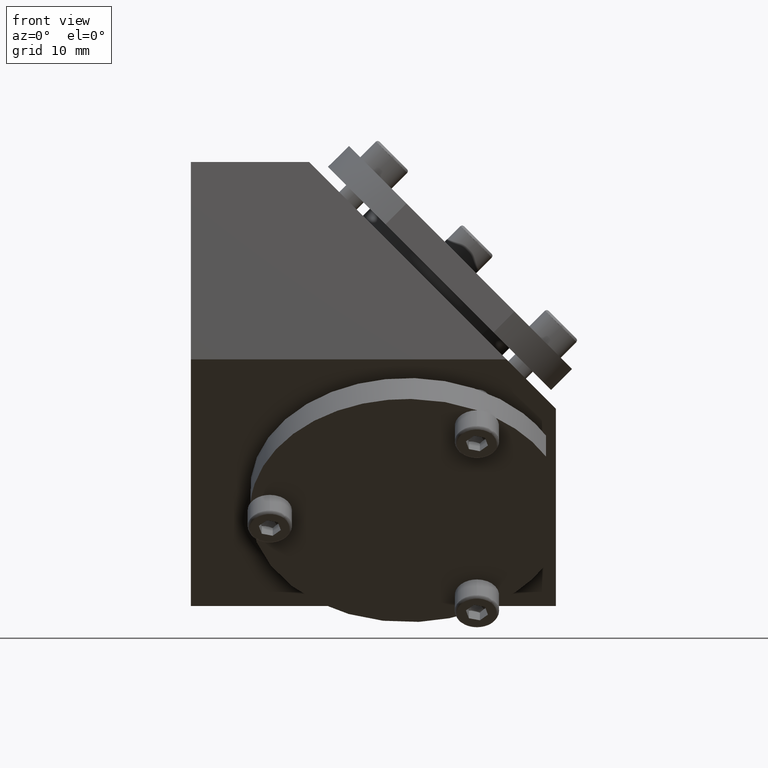
[diagram: clean part render]
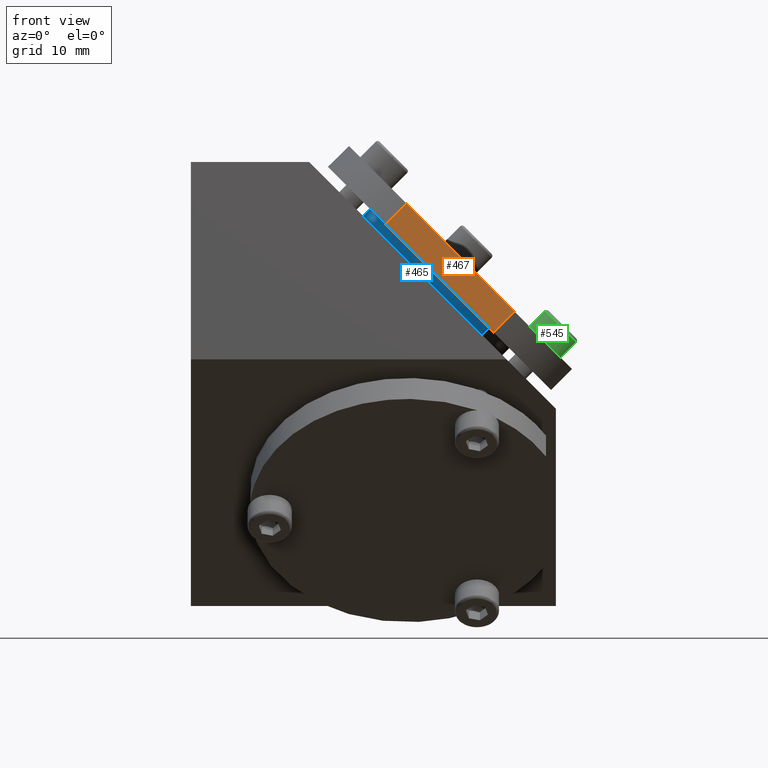
[diagram: same view with three faces highlighted in distinct colors, each labeled with its STEP entity id]
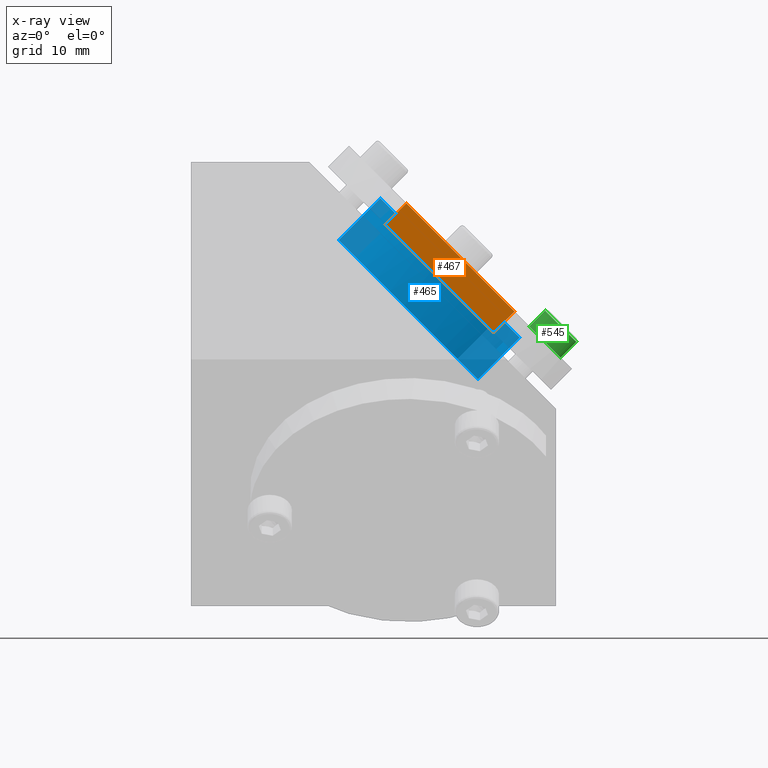
[diagram: x-ray of the same camera — body ghosted, the three highlighted faces saturated]
A machine part, front view with three faces highlighted in distinct colors.
The next image is the same camera in x-ray (body ghosted, the three faces saturated) — at least one of them is partly hidden behind the body in this view.
Their STEP definitions:

[orange] entity #467 — the highlighted face is a freeform B-spline surface patch.
#81=B_SPLINE_SURFACE_WITH_KNOTS('',1,1,((#14206,#14207),(#14208,#14209)),
 .UNSPECIFIED.,.F.,.F.,.F.,(2,2),(2,2),(-10.9537592390235,32.8612777170714),
(-55.1669318215805,-18.9724675358662),.UNSPECIFIED.);
#98=B_SPLINE_SURFACE_WITH_KNOTS('',1,1,((#14710,#14711),(#14712,#14713)),
 .UNSPECIFIED.,.F.,.F.,.F.,(2,2),(2,2),(-7.96546289619784,7.96546289619782),
(-23.8963886885934,-7.9654628961978),.UNSPECIFIED.);
#99=B_SPLINE_SURFACE_WITH_KNOTS('',1,1,((#14714,#14715),(#14716,#14717)),
 .UNSPECIFIED.,.F.,.F.,.F.,(2,2),(2,2),(-33.7171345524588,11.239044850819),
(-55.9726347529724,-19.6716765596116),.UNSPECIFIED.);
#467=ADVANCED_FACE('',(#717),#98,.T.);
#717=FACE_OUTER_BOUND('',#975,.T.);
#975=EDGE_LOOP('',(#1696,#1697,#1698,#1699));
#1696=ORIENTED_EDGE('',*,*,#7402,.T.);
#1697=ORIENTED_EDGE('',*,*,#7227,.F.);
#1698=ORIENTED_EDGE('',*,*,#7403,.T.);
#1699=ORIENTED_EDGE('',*,*,#7404,.T.);
#2801=PCURVE('',#81,#4131);
#3026=PCURVE('',#98,#4356);
#3027=PCURVE('',#98,#4357);
#3028=PCURVE('',#98,#4358);
#3029=PCURVE('',#98,#4359);
#3031=PCURVE('',#99,#4361);
#3100=PCURVE('',#9187,#4430);
#3102=PCURVE('',#9187,#4432);
#4131=DEFINITIONAL_REPRESENTATION('',(#5448),#23564);
#4356=DEFINITIONAL_REPRESENTATION('',(#5597),#23564);
#4357=DEFINITIONAL_REPRESENTATION('',(#5598),#23564);
#4358=DEFINITIONAL_REPRESENTATION('',(#5599),#23564);
#4359=DEFINITIONAL_REPRESENTATION('',(#5601),#23564);
#4361=DEFINITIONAL_REPRESENTATION('',(#5602),#23564);
#4430=DEFINITIONAL_REPRESENTATION('',(#5651),#23564);
#4432=DEFINITIONAL_REPRESENTATION('',(#5653),#23564);
#5447=B_SPLINE_CURVE_WITH_KNOTS('',1,(#16347,#16348),.UNSPECIFIED.,.F.,
 .F.,(2,2),(0.,15.4919333848297),.UNSPECIFIED.);
#5448=B_SPLINE_CURVE_WITH_KNOTS('',1,(#16349,#16350),.UNSPECIFIED.,.F.,
 .F.,(2,2),(0.,15.4919333848297),.UNSPECIFIED.);
#5597=B_SPLINE_CURVE_WITH_KNOTS('',1,(#17685,#17686),.UNSPECIFIED.,.F.,
 .F.,(2,2),(-3.00000000000008,0.),.UNSPECIFIED.);
#5598=B_SPLINE_CURVE_WITH_KNOTS('',1,(#17687,#17688),.UNSPECIFIED.,.F.,
 .F.,(2,2),(0.,15.4919333848297),.UNSPECIFIED.);
#5599=B_SPLINE_CURVE_WITH_KNOTS('',1,(#17691,#17692),.UNSPECIFIED.,.F.,
 .F.,(2,2),(-2.99999999999997,0.),.UNSPECIFIED.);
#5600=B_SPLINE_CURVE_WITH_KNOTS('',1,(#17693,#17694),.UNSPECIFIED.,.F.,
 .F.,(2,2),(-15.4919333848297,0.),.UNSPECIFIED.);
#5601=B_SPLINE_CURVE_WITH_KNOTS('',1,(#17695,#17696),.UNSPECIFIED.,.F.,
 .F.,(2,2),(-15.4919333848297,0.),.UNSPECIFIED.);
#5602=B_SPLINE_CURVE_WITH_KNOTS('',1,(#17715,#17716),.UNSPECIFIED.,.F.,
 .F.,(2,2),(-15.4919333848297,0.),.UNSPECIFIED.);
#5651=B_SPLINE_CURVE_WITH_KNOTS('',1,(#17998,#17999),.UNSPECIFIED.,.F.,
 .F.,(2,2),(-3.00000000000008,0.),.UNSPECIFIED.);
#5653=B_SPLINE_CURVE_WITH_KNOTS('',1,(#18002,#18003),.UNSPECIFIED.,.F.,
 .F.,(2,2),(-2.99999999999997,0.),.UNSPECIFIED.);
#6517=SURFACE_CURVE('',#5447,(#2801,#3027),.PCURVE_S1.);
#6692=SURFACE_CURVE('',#8201,(#3026,#3100),.PCURVE_S1.);
#6693=SURFACE_CURVE('',#8202,(#3028,#3102),.PCURVE_S1.);
#6694=SURFACE_CURVE('',#5600,(#3029,#3031),.PCURVE_S1.);
#7227=EDGE_CURVE('',#8707,#8708,#6517,.T.);
#7402=EDGE_CURVE('',#8848,#8708,#6692,.T.);
#7403=EDGE_CURVE('',#8707,#8849,#6693,.T.);
#7404=EDGE_CURVE('',#8849,#8848,#6694,.T.);
#8201=(
BOUNDED_CURVE()
B_SPLINE_CURVE(1,(#17683,#17684),.UNSPECIFIED.,.F.,.F.)
B_SPLINE_CURVE_WITH_KNOTS((2,2),(-3.00000000000008,0.),.UNSPECIFIED.)
CURVE()
GEOMETRIC_REPRESENTATION_ITEM()
RATIONAL_B_SPLINE_CURVE((1.,1.))
REPRESENTATION_ITEM('')
);
#8202=(
BOUNDED_CURVE()
B_SPLINE_CURVE(1,(#17689,#17690),.UNSPECIFIED.,.F.,.F.)
B_SPLINE_CURVE_WITH_KNOTS((2,2),(-2.99999999999997,0.),.UNSPECIFIED.)
CURVE()
GEOMETRIC_REPRESENTATION_ITEM()
RATIONAL_B_SPLINE_CURVE((1.,1.))
REPRESENTATION_ITEM('')
);
#8707=VERTEX_POINT('',#15873);
#8708=VERTEX_POINT('',#15874);
#8848=VERTEX_POINT('',#16014);
#8849=VERTEX_POINT('',#16015);
#9187=(
BOUNDED_SURFACE()
B_SPLINE_SURFACE(2,1,((#14906,#14907),(#14908,#14909),(#14910,#14911),(#14912,
#14913),(#14914,#14915),(#14916,#14917),(#14918,#14919),(#14920,#14921),
(#14922,#14923)),.UNSPECIFIED.,.T.,.F.,.F.)
B_SPLINE_SURFACE_WITH_KNOTS((3,2,2,2,3),(2,2),(0.,32.0000000000001,63.9999999999999,
96.,128.),(0.,47.9856081796871),.UNSPECIFIED.)
GEOMETRIC_REPRESENTATION_ITEM()
RATIONAL_B_SPLINE_SURFACE(((1.,1.),(0.707106781186548,0.707106781186548),
(1.,1.),(0.707106781186548,0.707106781186548),(1.,1.),(0.707106781186548,
0.707106781186548),(1.,1.),(0.707106781186548,0.707106781186548),(1.,1.)))
REPRESENTATION_ITEM('')
SURFACE()
);
#14206=CARTESIAN_POINT('',(-9.2823777291351,88.82187877684,22.1162052103521));
#14207=CARTESIAN_POINT('',(-9.28237772913511,88.82187877684,-14.0782590753622));
#14208=CARTESIAN_POINT('',(21.6995320204589,57.8399690272461,22.1162052103521));
#14209=CARTESIAN_POINT('',(21.6995320204588,57.8399690272461,-14.0782590753622));
#14710=CARTESIAN_POINT('',(-2.81754592231576,64.3048008340655,18.9999998532092));
#14711=CARTESIAN_POINT('',(-2.81754592231576,80.2357266264611,18.9999998532092));
#14712=CARTESIAN_POINT('',(13.1133798700799,64.3048008340655,18.9999998532092));
#14713=CARTESIAN_POINT('',(13.1133798700799,80.2357266264611,18.9999998532092));
#14714=CARTESIAN_POINT('',(19.9816664582506,55.3151939023351,22.1250797026559));
#14715=CARTESIAN_POINT('',(19.9816664582506,55.3151939023351,-14.1758784907049));
#14716=CARTESIAN_POINT('',(-11.8071528540461,87.1040132146318,22.1250797026559));
#14717=CARTESIAN_POINT('',(-11.8071528540461,87.1040132146317,-14.1758784907049));
#14906=CARTESIAN_POINT('',(21.9452852865942,89.0676320429755,20.9999998532092));
#14907=CARTESIAN_POINT('',(-11.985663656623,55.1366830997579,20.9999998532094));
#14908=CARTESIAN_POINT('',(10.6315767876094,100.38134054196,20.9999998532092));
#14909=CARTESIAN_POINT('',(-23.2993721556077,66.4503915987425,20.9999998532091));
#14910=CARTESIAN_POINT('',(10.6315767876093,100.38134054196,4.99999985320916));
#14911=CARTESIAN_POINT('',(-23.2993721556076,66.4503915987422,4.99999985320927));
#14912=CARTESIAN_POINT('',(10.6315767876092,100.38134054196,-11.0000001467908));
#14913=CARTESIAN_POINT('',(-23.2993721556076,66.450391598742,-11.0000001467906));
#14914=CARTESIAN_POINT('',(21.9452852865941,89.0676320429753,-11.0000001467908));
#14915=CARTESIAN_POINT('',(-11.9856636566228,55.1366830997574,-11.0000001467904));
#14916=CARTESIAN_POINT('',(33.258993785579,77.7539235439906,-11.0000001467908));
#14917=CARTESIAN_POINT('',(-0.671955157637981,43.8229746007729,-11.0000001467901));
#14918=CARTESIAN_POINT('',(33.2589937855791,77.7539235439907,4.99999985320918));
#14919=CARTESIAN_POINT('',(-0.671955157638074,43.8229746007731,4.99999985320975));
#14920=CARTESIAN_POINT('',(33.2589937855791,77.7539235439908,20.9999998532092));
#14921=CARTESIAN_POINT('',(-0.671955157638166,43.8229746007734,20.9999998532096));
#14922=CARTESIAN_POINT('',(21.9452852865942,89.0676320429755,20.9999998532092));
#14923=CARTESIAN_POINT('',(-11.985663656623,55.1366830997579,20.9999998532094));
#15873=CARTESIAN_POINT('',(0.731351570610186,78.8081494770948,18.9999998532091));
#15874=CARTESIAN_POINT('',(11.6858027207136,67.8536983269914,18.9999998532092));
#16014=CARTESIAN_POINT('',(9.56448237715396,65.7323779834318,18.9999998532093));
#16015=CARTESIAN_POINT('',(-1.38996877294947,76.6868291335352,18.9999998532091));
#16347=CARTESIAN_POINT('',(0.731351570610186,78.8081494770948,18.9999998532091));
#16348=CARTESIAN_POINT('',(11.6858027207136,67.8536983269914,18.9999998532092));
#16349=CARTESIAN_POINT('',(3.20779254660906,-52.0507264644375));
#16350=CARTESIAN_POINT('',(18.6997259314388,-52.0507264644376));
#17683=CARTESIAN_POINT('',(9.56448237715396,65.7323779834318,18.9999998532093));
#17684=CARTESIAN_POINT('',(11.6858027207136,67.8536983269914,18.9999998532092));
#17685=CARTESIAN_POINT('',(4.41656540327185,-22.4688115392271));
#17686=CARTESIAN_POINT('',(6.53788574683152,-20.3474911956674));
#17687=CARTESIAN_POINT('',(-4.41656540327189,-9.39304004556409));
#17688=CARTESIAN_POINT('',(6.53788574683152,-20.3474911956674));
#17689=CARTESIAN_POINT('',(0.731351570610186,78.8081494770948,18.9999998532091));
#17690=CARTESIAN_POINT('',(-1.38996877294947,76.6868291335352,18.9999998532091));
#17691=CARTESIAN_POINT('',(-4.41656540327189,-9.39304004556409));
#17692=CARTESIAN_POINT('',(-6.53788574683153,-11.5143603891237));
#17693=CARTESIAN_POINT('',(-1.38996877294947,76.6868291335352,18.9999998532091));
#17694=CARTESIAN_POINT('',(9.56448237715396,65.7323779834318,18.9999998532093));
#17695=CARTESIAN_POINT('',(-6.53788574683153,-11.5143603891237));
#17696=CARTESIAN_POINT('',(4.41656540327185,-22.4688115392271));
#17715=CARTESIAN_POINT('',(-3.49307815840494,-52.8475549035256));
#17716=CARTESIAN_POINT('',(-18.9850115432347,-52.8475549035257));
#17998=CARTESIAN_POINT('',(117.444190467351,25.2550660800137));
#17999=CARTESIAN_POINT('',(117.444190467351,22.2550660800136));
#18002=CARTESIAN_POINT('',(10.5558095326497,22.2550660800136));
#18003=CARTESIAN_POINT('',(10.5558095326497,25.2550660800135));
#23564=(
GEOMETRIC_REPRESENTATION_CONTEXT(2)
PARAMETRIC_REPRESENTATION_CONTEXT()
REPRESENTATION_CONTEXT('pspace','')
);

[blue] entity #465 — the highlighted face is a freeform B-spline surface patch.
#101=B_SPLINE_SURFACE_WITH_KNOTS('',1,1,((#14902,#14903),(#14904,#14905)),
 .UNSPECIFIED.,.F.,.F.,.F.,(2,2),(2,2),(-24.4151173873542,9.28525206097569),
(-53.4898357101582,-17.018314768321),.UNSPECIFIED.);
#111=B_SPLINE_SURFACE_WITH_KNOTS('',1,1,((#15496,#15497),(#15498,#15499)),
 .UNSPECIFIED.,.F.,.F.,.F.,(2,2),(2,2),(-31.6491875658199,-0.239213562373206),
(2.58096448796803,33.9464923616845),.UNSPECIFIED.);
#465=ADVANCED_FACE('',(#715),#9175,.T.);
#715=FACE_OUTER_BOUND('',#973,.T.);
#973=EDGE_LOOP('',(#1686,#1687,#1688,#1689,#1690,#1691));
#1686=ORIENTED_EDGE('',*,*,#7394,.T.);
#1687=ORIENTED_EDGE('',*,*,#7395,.T.);
#1688=ORIENTED_EDGE('',*,*,#7396,.T.);
#1689=ORIENTED_EDGE('',*,*,#7397,.T.);
#1690=ORIENTED_EDGE('',*,*,#7398,.T.);
#1691=ORIENTED_EDGE('',*,*,#7399,.T.);
#3016=PCURVE('',#9175,#4346);
#3017=PCURVE('',#9175,#4347);
#3018=PCURVE('',#9175,#4348);
#3019=PCURVE('',#9175,#4349);
#3020=PCURVE('',#9175,#4350);
#3021=PCURVE('',#9175,#4351);
#3023=PCURVE('',#9176,#4353);
#3025=PCURVE('',#9176,#4355);
#3097=PCURVE('',#101,#4427);
#3099=PCURVE('',#101,#4429);
#3354=PCURVE('',#111,#4684);
#3355=PCURVE('',#111,#4685);
#4346=DEFINITIONAL_REPRESENTATION('',(#5587),#23564);
#4347=DEFINITIONAL_REPRESENTATION('',(#5588),#23564);
#4348=DEFINITIONAL_REPRESENTATION('',(#5589),#23564);
#4349=DEFINITIONAL_REPRESENTATION('',(#5590),#23564);
#4350=DEFINITIONAL_REPRESENTATION('',(#5591),#23564);
#4351=DEFINITIONAL_REPRESENTATION('',(#5592),#23564);
#4353=DEFINITIONAL_REPRESENTATION('',(#5594),#23564);
#4355=DEFINITIONAL_REPRESENTATION('',(#5596),#23564);
#4427=DEFINITIONAL_REPRESENTATION('',(#8249),#23564);
#4429=DEFINITIONAL_REPRESENTATION('',(#8251),#23564);
#4684=DEFINITIONAL_REPRESENTATION('',(#8396),#23564);
#4685=DEFINITIONAL_REPRESENTATION('',(#8397),#23564);
#5587=B_SPLINE_CURVE_WITH_KNOTS('',1,(#17638,#17639),.UNSPECIFIED.,.F.,
 .F.,(2,2),(-62.8318530717959,-31.4159265358979),.UNSPECIFIED.);
#5588=B_SPLINE_CURVE_WITH_KNOTS('',1,(#17645,#17646),.UNSPECIFIED.,.F.,
 .F.,(2,2),(-31.4159265358979,-7.85398163397446),.UNSPECIFIED.);
#5589=B_SPLINE_CURVE_WITH_KNOTS('',1,(#17649,#17650),.UNSPECIFIED.,.F.,
 .F.,(2,2),(17.7402683759619,23.740268375962),.UNSPECIFIED.);
#5590=B_SPLINE_CURVE_WITH_KNOTS('',1,(#17656,#17657),.UNSPECIFIED.,.F.,
 .F.,(2,2),(-54.9778714378214,-31.4159265358979),.UNSPECIFIED.);
#5591=B_SPLINE_CURVE_WITH_KNOTS('',1,(#17663,#17664),.UNSPECIFIED.,.F.,
 .F.,(2,2),(-31.4159265358979,0.),.UNSPECIFIED.);
#5592=B_SPLINE_CURVE_WITH_KNOTS('',1,(#17667,#17668),.UNSPECIFIED.,.F.,
 .F.,(2,2),(0.,6.00000000000003),.UNSPECIFIED.);
#5594=B_SPLINE_CURVE_WITH_KNOTS('',1,(#17674,#17675),.UNSPECIFIED.,.F.,
 .F.,(2,2),(17.7402683759619,23.740268375962),.UNSPECIFIED.);
#5596=B_SPLINE_CURVE_WITH_KNOTS('',1,(#17681,#17682),.UNSPECIFIED.,.F.,
 .F.,(2,2),(0.,6.00000000000003),.UNSPECIFIED.);
#6684=SURFACE_CURVE('',#8193,(#3016,#3097),.PCURVE_S1.);
#6685=SURFACE_CURVE('',#8194,(#3017,#3099),.PCURVE_S1.);
#6686=SURFACE_CURVE('',#8195,(#3018,#3023),.PCURVE_S1.);
#6687=SURFACE_CURVE('',#8196,(#3019,#3355),.PCURVE_S1.);
#6688=SURFACE_CURVE('',#8197,(#3020,#3354),.PCURVE_S1.);
#6689=SURFACE_CURVE('',#8198,(#3021,#3025),.PCURVE_S1.);
#7394=EDGE_CURVE('',#8842,#8843,#6684,.T.);
#7395=EDGE_CURVE('',#8843,#8844,#6685,.T.);
#7396=EDGE_CURVE('',#8844,#8845,#6686,.T.);
#7397=EDGE_CURVE('',#8845,#8846,#6687,.T.);
#7398=EDGE_CURVE('',#8846,#8847,#6688,.T.);
#7399=EDGE_CURVE('',#8847,#8842,#6689,.T.);
#8193=(
BOUNDED_CURVE()
B_SPLINE_CURVE(2,(#17633,#17634,#17635,#17636,#17637),.UNSPECIFIED.,.F.,
 .F.)
B_SPLINE_CURVE_WITH_KNOTS((3,2,3),(-62.8318530717959,-47.1238898038469,
-31.4159265358979),.UNSPECIFIED.)
CURVE()
GEOMETRIC_REPRESENTATION_ITEM()
RATIONAL_B_SPLINE_CURVE((1.,0.707106781186547,1.,0.707106781186547,1.))
REPRESENTATION_ITEM('')
);
#8194=(
BOUNDED_CURVE()
B_SPLINE_CURVE(2,(#17640,#17641,#17642,#17643,#17644),.UNSPECIFIED.,.F.,
 .F.)
B_SPLINE_CURVE_WITH_KNOTS((3,2,3),(-31.4159265358979,-23.5619449019234,
-7.85398163397446),.UNSPECIFIED.)
CURVE()
GEOMETRIC_REPRESENTATION_ITEM()
RATIONAL_B_SPLINE_CURVE((1.,0.923879532511286,1.,0.707106781186548,1.))
REPRESENTATION_ITEM('')
);
#8195=(
BOUNDED_CURVE()
B_SPLINE_CURVE(1,(#17647,#17648),.UNSPECIFIED.,.F.,.F.)
B_SPLINE_CURVE_WITH_KNOTS((2,2),(17.7402683759619,23.740268375962),
 .UNSPECIFIED.)
CURVE()
GEOMETRIC_REPRESENTATION_ITEM()
RATIONAL_B_SPLINE_CURVE((1.,1.))
REPRESENTATION_ITEM('')
);
#8196=(
BOUNDED_CURVE()
B_SPLINE_CURVE(2,(#17651,#17652,#17653,#17654,#17655),.UNSPECIFIED.,.F.,
 .F.)
B_SPLINE_CURVE_WITH_KNOTS((3,2,3),(-54.9778714378214,-43.1968989868596,
-31.4159265358979),.UNSPECIFIED.)
CURVE()
GEOMETRIC_REPRESENTATION_ITEM()
RATIONAL_B_SPLINE_CURVE((1.,0.831469612302545,1.,0.831469612302545,1.))
REPRESENTATION_ITEM('')
);
#8197=(
BOUNDED_CURVE()
B_SPLINE_CURVE(2,(#17658,#17659,#17660,#17661,#17662),.UNSPECIFIED.,.F.,
 .F.)
B_SPLINE_CURVE_WITH_KNOTS((3,2,3),(-31.4159265358979,-15.7079632679489,
0.),.UNSPECIFIED.)
CURVE()
GEOMETRIC_REPRESENTATION_ITEM()
RATIONAL_B_SPLINE_CURVE((1.,0.707106781186548,1.,0.707106781186548,1.))
REPRESENTATION_ITEM('')
);
#8198=(
BOUNDED_CURVE()
B_SPLINE_CURVE(1,(#17665,#17666),.UNSPECIFIED.,.F.,.F.)
B_SPLINE_CURVE_WITH_KNOTS((2,2),(0.,6.00000000000003),.UNSPECIFIED.)
CURVE()
GEOMETRIC_REPRESENTATION_ITEM()
RATIONAL_B_SPLINE_CURVE((1.,1.))
REPRESENTATION_ITEM('')
);
#8249=(
BOUNDED_CURVE()
B_SPLINE_CURVE(2,(#17985,#17986,#17987,#17988,#17989),.UNSPECIFIED.,.F.,
 .F.)
B_SPLINE_CURVE_WITH_KNOTS((3,2,3),(-62.8318530717959,-47.1238898038469,
-31.4159265358979),.UNSPECIFIED.)
CURVE()
GEOMETRIC_REPRESENTATION_ITEM()
RATIONAL_B_SPLINE_CURVE((1.,0.707106781186547,1.,0.707106781186547,1.))
REPRESENTATION_ITEM('')
);
#8251=(
BOUNDED_CURVE()
B_SPLINE_CURVE(2,(#17993,#17994,#17995,#17996,#17997),.UNSPECIFIED.,.F.,
 .F.)
B_SPLINE_CURVE_WITH_KNOTS((3,2,3),(-31.4159265358979,-19.6349540849362,
-7.85398163397446),.UNSPECIFIED.)
CURVE()
GEOMETRIC_REPRESENTATION_ITEM()
RATIONAL_B_SPLINE_CURVE((1.,0.831469612302545,1.,0.831469612302545,1.))
REPRESENTATION_ITEM('')
);
#8396=(
BOUNDED_CURVE()
B_SPLINE_CURVE(2,(#19857,#19858,#19859,#19860,#19861),.UNSPECIFIED.,.F.,
 .F.)
B_SPLINE_CURVE_WITH_KNOTS((3,2,3),(-31.4159265358979,-15.7079632679489,
0.),.UNSPECIFIED.)
CURVE()
GEOMETRIC_REPRESENTATION_ITEM()
RATIONAL_B_SPLINE_CURVE((1.,0.707106781186548,1.,0.707106781186548,1.))
REPRESENTATION_ITEM('')
);
#8397=(
BOUNDED_CURVE()
B_SPLINE_CURVE(2,(#19862,#19863,#19864,#19865,#19866),.UNSPECIFIED.,.F.,
 .F.)
B_SPLINE_CURVE_WITH_KNOTS((3,2,3),(-54.9778714378214,-43.1968989868596,
-31.4159265358979),.UNSPECIFIED.)
CURVE()
GEOMETRIC_REPRESENTATION_ITEM()
RATIONAL_B_SPLINE_CURVE((1.,0.831469612302545,1.,0.831469612302545,1.))
REPRESENTATION_ITEM('')
);
#8842=VERTEX_POINT('',#16008);
#8843=VERTEX_POINT('',#16009);
#8844=VERTEX_POINT('',#16010);
#8845=VERTEX_POINT('',#16011);
#8846=VERTEX_POINT('',#16012);
#8847=VERTEX_POINT('',#16013);
#9175=(
BOUNDED_SURFACE()
B_SPLINE_SURFACE(2,1,((#14674,#14675),(#14676,#14677),(#14678,#14679),(#14680,
#14681),(#14682,#14683),(#14684,#14685),(#14686,#14687),(#14688,#14689),
(#14690,#14691)),.UNSPECIFIED.,.T.,.F.,.F.)
B_SPLINE_SURFACE_WITH_KNOTS((3,2,2,2,3),(2,2),(0.,1.5707963267949,3.14159265358979,
4.71238898038469,6.28318530717959),(0.,41.4805367519239),.UNSPECIFIED.)
GEOMETRIC_REPRESENTATION_ITEM()
RATIONAL_B_SPLINE_SURFACE(((1.,1.),(0.707106781186548,0.707106781186548),
(1.,1.),(0.707106781186548,0.707106781186548),(1.,1.),(0.707106781186548,
0.707106781186548),(1.,1.),(0.707106781186548,0.707106781186548),(1.,1.)))
REPRESENTATION_ITEM('')
SURFACE()
);
#9176=(
BOUNDED_SURFACE()
B_SPLINE_SURFACE(2,1,((#14692,#14693),(#14694,#14695),(#14696,#14697),(#14698,
#14699),(#14700,#14701),(#14702,#14703),(#14704,#14705),(#14706,#14707),
(#14708,#14709)),.UNSPECIFIED.,.T.,.F.,.F.)
B_SPLINE_SURFACE_WITH_KNOTS((3,2,2,2,3),(2,2),(0.,1.5707963267949,3.14159265358979,
4.71238898038469,6.28318530717959),(0.,41.4805367519239),.UNSPECIFIED.)
GEOMETRIC_REPRESENTATION_ITEM()
RATIONAL_B_SPLINE_SURFACE(((1.,1.),(0.707106781186548,0.707106781186548),
(1.,1.),(0.707106781186548,0.707106781186548),(1.,1.),(0.707106781186548,
0.707106781186548),(1.,1.),(0.707106781186548,0.707106781186548),(1.,1.)))
REPRESENTATION_ITEM('')
SURFACE()
);
#14674=CARTESIAN_POINT('',(24.7632488544596,77.7434599871096,4.99999985320886));
#14675=CARTESIAN_POINT('',(-4.56791997008362,48.4122911625665,4.99999985320886));
#14676=CARTESIAN_POINT('',(24.7632488544596,77.7434599871096,14.9999998532089));
#14677=CARTESIAN_POINT('',(-4.56791997008362,48.4122911625665,14.9999998532087));
#14678=CARTESIAN_POINT('',(17.6921810425941,84.8145277989751,14.9999998532089));
#14679=CARTESIAN_POINT('',(-11.638987781949,55.4833589744319,14.9999998532087));
#14680=CARTESIAN_POINT('',(10.6211132307286,91.8855956108405,14.9999998532089));
#14681=CARTESIAN_POINT('',(-18.7100555938144,62.5544267862972,14.9999998532087));
#14682=CARTESIAN_POINT('',(10.6211132307286,91.8855956108405,4.99999985320886));
#14683=CARTESIAN_POINT('',(-18.7100555938144,62.5544267862972,4.99999985320887));
#14684=CARTESIAN_POINT('',(10.6211132307286,91.8855956108405,-5.00000014679113));
#14685=CARTESIAN_POINT('',(-18.7100555938144,62.5544267862972,-5.00000014679099));
#14686=CARTESIAN_POINT('',(17.6921810425941,84.8145277989751,-5.00000014679113));
#14687=CARTESIAN_POINT('',(-11.638987781949,55.4833589744319,-5.000000146791));
#14688=CARTESIAN_POINT('',(24.7632488544596,77.7434599871096,-5.00000014679113));
#14689=CARTESIAN_POINT('',(-4.56791997008362,48.4122911625665,-5.000000146791));
#14690=CARTESIAN_POINT('',(24.7632488544596,77.7434599871096,4.99999985320886));
#14691=CARTESIAN_POINT('',(-4.56791997008362,48.4122911625665,4.99999985320886));
#14692=CARTESIAN_POINT('',(24.7632488544596,77.7434599871096,4.99999985320886));
#14693=CARTESIAN_POINT('',(-4.56791997008362,48.4122911625665,4.99999985320886));
#14694=CARTESIAN_POINT('',(24.7632488544596,77.7434599871096,14.9999998532089));
#14695=CARTESIAN_POINT('',(-4.56791997008362,48.4122911625665,14.9999998532087));
#14696=CARTESIAN_POINT('',(17.6921810425941,84.8145277989751,14.9999998532089));
#14697=CARTESIAN_POINT('',(-11.638987781949,55.4833589744319,14.9999998532087));
#14698=CARTESIAN_POINT('',(10.6211132307286,91.8855956108405,14.9999998532089));
#14699=CARTESIAN_POINT('',(-18.7100555938144,62.5544267862972,14.9999998532087));
#14700=CARTESIAN_POINT('',(10.6211132307286,91.8855956108405,4.99999985320886));
#14701=CARTESIAN_POINT('',(-18.7100555938144,62.5544267862972,4.99999985320887));
#14702=CARTESIAN_POINT('',(10.6211132307286,91.8855956108405,-5.00000014679113));
#14703=CARTESIAN_POINT('',(-18.7100555938144,62.5544267862972,-5.00000014679099));
#14704=CARTESIAN_POINT('',(17.6921810425941,84.8145277989751,-5.00000014679113));
#14705=CARTESIAN_POINT('',(-11.638987781949,55.4833589744319,-5.000000146791));
#14706=CARTESIAN_POINT('',(24.7632488544596,77.7434599871096,-5.00000014679113));
#14707=CARTESIAN_POINT('',(-4.56791997008362,48.4122911625665,-5.000000146791));
#14708=CARTESIAN_POINT('',(24.7632488544596,77.7434599871096,4.99999985320886));
#14709=CARTESIAN_POINT('',(-4.56791997008362,48.4122911625665,4.99999985320886));
#14902=CARTESIAN_POINT('',(15.5422349666078,61.8759457375376,22.2814288887596));
#14903=CARTESIAN_POINT('',(15.5422349666078,61.8759457375376,-14.1900920530776));
#14904=CARTESIAN_POINT('',(-8.28752479879821,85.7057055029436,22.2814288887596));
#14905=CARTESIAN_POINT('',(-8.28752479879822,85.7057055029436,-14.1900920530776));
#15496=CARTESIAN_POINT('',(11.164631433599,57.7682678963077,-9.50959840730027));
#15497=CARTESIAN_POINT('',(11.164631433599,57.7682678963077,21.8559294664162));
#15498=CARTESIAN_POINT('',(-11.0455741811313,79.978473511038,-9.50959840730027));
#15499=CARTESIAN_POINT('',(-11.0455741811313,79.978473511038,21.8559294664162));
#16008=CARTESIAN_POINT('',(10.1479169738822,67.2702637302632,12.0710676650743));
#16009=CARTESIAN_POINT('',(0.147916973882185,77.2702637302632,-2.07106795865655));
#16010=CARTESIAN_POINT('',(12.2189847857477,65.1991959183977,4.99999985320886));
#16011=CARTESIAN_POINT('',(7.97634409862832,60.9565552312784,4.99999985320886));
#16012=CARTESIAN_POINT('',(-4.09472371323716,73.0276230431438,-2.07106795865653));
#16013=CARTESIAN_POINT('',(5.90527628676285,63.0276230431439,12.0710676650743));
#17633=CARTESIAN_POINT('',(10.1479169738822,67.2702637302632,12.0710676650743));
#17634=CARTESIAN_POINT('',(5.14791697388221,72.2702637302632,19.1421354769398));
#17635=CARTESIAN_POINT('',(0.1479169738822,77.2702637302632,12.0710676650743));
#17636=CARTESIAN_POINT('',(-4.85208302611781,82.2702637302632,4.99999985320893));
#17637=CARTESIAN_POINT('',(0.147916973882185,77.2702637302632,-2.07106795865655));
#17638=CARTESIAN_POINT('',(0.78539816339745,17.7402683759619));
#17639=CARTESIAN_POINT('',(3.92699081698723,17.7402683759619));
#17640=CARTESIAN_POINT('',(0.147916973882185,77.2702637302632,-2.07106795865655));
#17641=CARTESIAN_POINT('',(2.21898478574766,75.1991959183977,-5.00000014679111));
#17642=CARTESIAN_POINT('',(5.14791697388221,72.2702637302632,-5.0000001467911));
#17643=CARTESIAN_POINT('',(12.2189847857477,65.1991959183977,-5.00000014679108));
#17644=CARTESIAN_POINT('',(12.2189847857477,65.1991959183977,4.99999985320886));
#17645=CARTESIAN_POINT('',(3.92699081698723,17.7402683759619));
#17646=CARTESIAN_POINT('',(6.28318530717959,17.7402683759619));
#17647=CARTESIAN_POINT('',(12.2189847857477,65.1991959183977,4.99999985320886));
#17648=CARTESIAN_POINT('',(7.97634409862832,60.9565552312784,4.99999985320886));
#17649=CARTESIAN_POINT('',(6.28318530717959,17.7402683759619));
#17650=CARTESIAN_POINT('',(6.28318530717959,23.740268375962));
#17651=CARTESIAN_POINT('',(7.97634409862832,60.9565552312784,4.99999985320886));
#17652=CARTESIAN_POINT('',(7.97634409862832,60.9565552312784,-1.68178652598414));
#17653=CARTESIAN_POINT('',(3.61125678749382,65.3216425424129,-4.238795471904));
#17654=CARTESIAN_POINT('',(-0.753830523640669,69.6867298535473,-6.79580441782385));
#17655=CARTESIAN_POINT('',(-4.09472371323716,73.0276230431438,-2.07106795865653));
#17656=CARTESIAN_POINT('',(6.28318530717959,23.740268375962));
#17657=CARTESIAN_POINT('',(3.92699081698723,23.7402683759619));
#17658=CARTESIAN_POINT('',(-4.09472371323716,73.0276230431438,-2.07106795865653));
#17659=CARTESIAN_POINT('',(-9.09472371323708,78.0276230431438,4.99999985320898));
#17660=CARTESIAN_POINT('',(-4.09472371323708,73.0276230431438,12.0710676650743));
#17661=CARTESIAN_POINT('',(0.90527628676287,68.0276230431439,19.1421354769398));
#17662=CARTESIAN_POINT('',(5.90527628676285,63.0276230431439,12.0710676650743));
#17663=CARTESIAN_POINT('',(3.92699081698723,23.7402683759619));
#17664=CARTESIAN_POINT('',(0.785398163397453,23.740268375962));
#17665=CARTESIAN_POINT('',(5.90527628676285,63.0276230431439,12.0710676650743));
#17666=CARTESIAN_POINT('',(10.1479169738822,67.2702637302632,12.0710676650743));
#17667=CARTESIAN_POINT('',(0.785398163397453,23.740268375962));
#17668=CARTESIAN_POINT('',(0.78539816339745,17.7402683759619));
#17674=CARTESIAN_POINT('',(0.,17.7402683759619));
#17675=CARTESIAN_POINT('',(0.,23.740268375962));
#17681=CARTESIAN_POINT('',(0.785398163397453,23.740268375962));
#17682=CARTESIAN_POINT('',(0.78539816339745,17.7402683759619));
#17985=CARTESIAN_POINT('',(-16.7863997222884,-43.2794744864729));
#17986=CARTESIAN_POINT('',(-9.71533191042297,-50.3505422983384));
#17987=CARTESIAN_POINT('',(-2.64426409855748,-43.2794744864729));
#17988=CARTESIAN_POINT('',(4.42680371330801,-36.2084066746075));
#17989=CARTESIAN_POINT('',(-2.64426409855745,-29.137338862742));
#17993=CARTESIAN_POINT('',(-2.64426409855745,-29.137338862742));
#17994=CARTESIAN_POINT('',(-7.36900055772472,-24.4126024035747));
#17995=CARTESIAN_POINT('',(-13.5421662340738,-26.9696113494946));
#17996=CARTESIAN_POINT('',(-19.715331910423,-29.5266202954145));
#17997=CARTESIAN_POINT('',(-19.715331910423,-36.2084066746075));
#19857=CARTESIAN_POINT('',(-10.0692005640964,10.0194949366117));
#19858=CARTESIAN_POINT('',(-2.99813275223107,17.0905627484772));
#19859=CARTESIAN_POINT('',(-10.0692005640965,24.1616305603426));
#19860=CARTESIAN_POINT('',(-17.140268375962,31.2326983722081));
#19861=CARTESIAN_POINT('',(-24.2113361878274,24.1616305603426));
#19862=CARTESIAN_POINT('',(-27.140268375962,17.0905627484772));
#19863=CARTESIAN_POINT('',(-27.140268375962,10.4087763692842));
#19864=CARTESIAN_POINT('',(-20.9671026996128,7.85176742336428));
#19865=CARTESIAN_POINT('',(-14.7939370232637,5.2947584774444));
#19866=CARTESIAN_POINT('',(-10.0692005640964,10.0194949366117));
#23564=(
GEOMETRIC_REPRESENTATION_CONTEXT(2)
PARAMETRIC_REPRESENTATION_CONTEXT()
REPRESENTATION_CONTEXT('pspace','')
);

[green] entity #545 — the highlighted face is a freeform B-spline surface patch.
#81=B_SPLINE_SURFACE_WITH_KNOTS('',1,1,((#14206,#14207),(#14208,#14209)),
 .UNSPECIFIED.,.F.,.F.,.F.,(2,2),(2,2),(-10.9537592390235,32.8612777170714),
(-55.1669318215805,-18.9724675358662),.UNSPECIFIED.);
#83=B_SPLINE_SURFACE_WITH_KNOTS('',1,1,((#14224,#14225),(#14226,#14227)),
 .UNSPECIFIED.,.F.,.F.,.F.,(2,2),(2,2),(-1.66096258855298,-1.83991710756004E-13),
(3.10862446895044E-14,2.52899405457687),.UNSPECIFIED.);
#545=ADVANCED_FACE('',(#795),#9235,.T.);
#795=FACE_OUTER_BOUND('',#1080,.T.);
#1080=EDGE_LOOP('',(#2153,#2154,#2155,#2156,#2157,#2158,#2159));
#2153=ORIENTED_EDGE('',*,*,#7608,.T.);
#2154=ORIENTED_EDGE('',*,*,#7609,.T.);
#2155=ORIENTED_EDGE('',*,*,#7258,.F.);
#2156=ORIENTED_EDGE('',*,*,#7229,.F.);
#2157=ORIENTED_EDGE('',*,*,#7249,.F.);
#2158=ORIENTED_EDGE('',*,*,#7231,.F.);
#2159=ORIENTED_EDGE('',*,*,#7257,.F.);
#2803=PCURVE('',#81,#4133);
#2805=PCURVE('',#81,#4135);
#2823=PCURVE('',#83,#4153);
#2835=PCURVE('',#9154,#4165);
#2837=PCURVE('',#9154,#4167);
#3483=PCURVE('',#9235,#4813);
#3484=PCURVE('',#9235,#4814);
#3485=PCURVE('',#9235,#4815);
#3486=PCURVE('',#9235,#4816);
#3487=PCURVE('',#9235,#4817);
#3488=PCURVE('',#9235,#4818);
#3489=PCURVE('',#9235,#4819);
#4133=DEFINITIONAL_REPRESENTATION('',(#7954),#23564);
#4135=DEFINITIONAL_REPRESENTATION('',(#7958),#23564);
#4153=DEFINITIONAL_REPRESENTATION('',(#7989),#23564);
#4165=DEFINITIONAL_REPRESENTATION('',(#5463),#23564);
#4167=DEFINITIONAL_REPRESENTATION('',(#5465),#23564);
#4813=DEFINITIONAL_REPRESENTATION('',(#6011),#23564);
#4814=DEFINITIONAL_REPRESENTATION('',(#6012),#23564);
#4815=DEFINITIONAL_REPRESENTATION('',(#6013),#23564);
#4816=DEFINITIONAL_REPRESENTATION('',(#6014),#23564);
#4817=DEFINITIONAL_REPRESENTATION('',(#6015),#23564);
#4818=DEFINITIONAL_REPRESENTATION('',(#6016),#23564);
#4819=DEFINITIONAL_REPRESENTATION('',(#6017),#23564);
#5463=B_SPLINE_CURVE_WITH_KNOTS('',1,(#16577,#16578),.UNSPECIFIED.,.F.,
 .F.,(2,2),(3.09526475413931,5.34526475413932),.UNSPECIFIED.);
#5465=B_SPLINE_CURVE_WITH_KNOTS('',1,(#16583,#16584),.UNSPECIFIED.,.F.,
 .F.,(2,2),(-5.34526475413932,-3.09526475413929),.UNSPECIFIED.);
#6011=B_SPLINE_CURVE_WITH_KNOTS('',1,(#21522,#21523),.UNSPECIFIED.,.F.,
 .F.,(2,2),(-3.53429173528852,0.),.UNSPECIFIED.);
#6012=B_SPLINE_CURVE_WITH_KNOTS('',1,(#21527,#21528),.UNSPECIFIED.,.F.,
 .F.,(2,2),(-3.53429173528852,0.),.UNSPECIFIED.);
#6013=B_SPLINE_CURVE_WITH_KNOTS('',1,(#21529,#21530),.UNSPECIFIED.,.F.,
 .F.,(2,2),(-5.34526475413932,-3.09526475413929),.UNSPECIFIED.);
#6014=B_SPLINE_CURVE_WITH_KNOTS('',1,(#21531,#21532),.UNSPECIFIED.,.F.,
 .F.,(2,2),(0.,4.7396689117186),.UNSPECIFIED.);
#6015=B_SPLINE_CURVE_WITH_KNOTS('',1,(#21533,#21534),.UNSPECIFIED.,.F.,
 .F.,(2,2),(0.,2.30163462752477),.UNSPECIFIED.);
#6016=B_SPLINE_CURVE_WITH_KNOTS('',1,(#21535,#21536),.UNSPECIFIED.,.F.,
 .F.,(2,2),(7.06858347057696,7.09586340191074),.UNSPECIFIED.);
#6017=B_SPLINE_CURVE_WITH_KNOTS('',1,(#21537,#21538),.UNSPECIFIED.,.F.,
 .F.,(2,2),(3.09526475413931,5.34526475413932),.UNSPECIFIED.);
#6519=SURFACE_CURVE('',#7953,(#2803,#3486),.PCURVE_S1.);
#6521=SURFACE_CURVE('',#7957,(#2805,#3488),.PCURVE_S1.);
#6539=SURFACE_CURVE('',#7988,(#2823,#3487),.PCURVE_S1.);
#6547=SURFACE_CURVE('',#7999,(#2835,#3489),.PCURVE_S1.);
#6548=SURFACE_CURVE('',#8000,(#2837,#3485),.PCURVE_S1.);
#6898=SURFACE_CURVE('',#8450,(#3483),.PCURVE_S1.);
#6899=SURFACE_CURVE('',#8451,(#3484),.PCURVE_S1.);
#7229=EDGE_CURVE('',#8709,#8710,#6519,.T.);
#7231=EDGE_CURVE('',#8711,#8712,#6521,.T.);
#7249=EDGE_CURVE('',#8712,#8709,#6539,.T.);
#7257=EDGE_CURVE('',#8733,#8711,#6547,.T.);
#7258=EDGE_CURVE('',#8710,#8734,#6548,.T.);
#7608=EDGE_CURVE('',#8733,#8976,#6898,.T.);
#7609=EDGE_CURVE('',#8976,#8734,#6899,.T.);
#7953=(
BOUNDED_CURVE()
B_SPLINE_CURVE(2,(#16357,#16358,#16359,#16360,#16361),.UNSPECIFIED.,.F.,
 .F.)
B_SPLINE_CURVE_WITH_KNOTS((3,2,3),(0.,2.3698344558593,4.7396689117186),
 .UNSPECIFIED.)
CURVE()
GEOMETRIC_REPRESENTATION_ITEM()
RATIONAL_B_SPLINE_CURVE((1.,0.864505876024987,1.,0.864505876024987,1.))
REPRESENTATION_ITEM('')
);
#7954=(
BOUNDED_CURVE()
B_SPLINE_CURVE(2,(#16362,#16363,#16364,#16365,#16366),.UNSPECIFIED.,.F.,
 .F.)
B_SPLINE_CURVE_WITH_KNOTS((3,2,3),(0.,2.3698344558593,4.7396689117186),
 .UNSPECIFIED.)
CURVE()
GEOMETRIC_REPRESENTATION_ITEM()
RATIONAL_B_SPLINE_CURVE((1.,0.864505876024987,1.,0.864505876024987,1.))
REPRESENTATION_ITEM('')
);
#7957=(
BOUNDED_CURVE()
B_SPLINE_CURVE(2,(#16377,#16378,#16379),.UNSPECIFIED.,.F.,.F.)
B_SPLINE_CURVE_WITH_KNOTS((3,3),(7.06858347057696,7.09586340191074),
 .UNSPECIFIED.)
CURVE()
GEOMETRIC_REPRESENTATION_ITEM()
RATIONAL_B_SPLINE_CURVE((1.,0.999981624888383,1.))
REPRESENTATION_ITEM('')
);
#7958=(
BOUNDED_CURVE()
B_SPLINE_CURVE(2,(#16380,#16381,#16382),.UNSPECIFIED.,.F.,.F.)
B_SPLINE_CURVE_WITH_KNOTS((3,3),(7.06858347057696,7.09586340191074),
 .UNSPECIFIED.)
CURVE()
GEOMETRIC_REPRESENTATION_ITEM()
RATIONAL_B_SPLINE_CURVE((1.,0.999981624879643,1.))
REPRESENTATION_ITEM('')
);
#7988=(
BOUNDED_CURVE()
B_SPLINE_CURVE(2,(#16514,#16515,#16516),.UNSPECIFIED.,.F.,.F.)
B_SPLINE_CURVE_WITH_KNOTS((3,3),(0.,2.30163462752477),.UNSPECIFIED.)
CURVE()
GEOMETRIC_REPRESENTATION_ITEM()
RATIONAL_B_SPLINE_CURVE((1.,0.872023809523832,1.))
REPRESENTATION_ITEM('')
);
#7989=(
BOUNDED_CURVE()
B_SPLINE_CURVE(2,(#16517,#16518,#16519),.UNSPECIFIED.,.F.,.F.)
B_SPLINE_CURVE_WITH_KNOTS((3,3),(0.,2.30163462752477),.UNSPECIFIED.)
CURVE()
GEOMETRIC_REPRESENTATION_ITEM()
RATIONAL_B_SPLINE_CURVE((1.,0.872023809523832,1.))
REPRESENTATION_ITEM('')
);
#7999=(
BOUNDED_CURVE()
B_SPLINE_CURVE(1,(#16575,#16576),.UNSPECIFIED.,.F.,.F.)
B_SPLINE_CURVE_WITH_KNOTS((2,2),(3.09526475413931,5.34526475413932),
 .UNSPECIFIED.)
CURVE()
GEOMETRIC_REPRESENTATION_ITEM()
RATIONAL_B_SPLINE_CURVE((1.,1.))
REPRESENTATION_ITEM('')
);
#8000=(
BOUNDED_CURVE()
B_SPLINE_CURVE(1,(#16581,#16582),.UNSPECIFIED.,.F.,.F.)
B_SPLINE_CURVE_WITH_KNOTS((2,2),(-5.34526475413932,-3.09526475413929),
 .UNSPECIFIED.)
CURVE()
GEOMETRIC_REPRESENTATION_ITEM()
RATIONAL_B_SPLINE_CURVE((1.,1.))
REPRESENTATION_ITEM('')
);
#8450=(
BOUNDED_CURVE()
B_SPLINE_CURVE(2,(#21519,#21520,#21521),.UNSPECIFIED.,.F.,.F.)
B_SPLINE_CURVE_WITH_KNOTS((3,3),(-3.53429173528852,0.),.UNSPECIFIED.)
CURVE()
GEOMETRIC_REPRESENTATION_ITEM()
RATIONAL_B_SPLINE_CURVE((1.,0.707106781186558,1.))
REPRESENTATION_ITEM('')
);
#8451=(
BOUNDED_CURVE()
B_SPLINE_CURVE(2,(#21524,#21525,#21526),.UNSPECIFIED.,.F.,.F.)
B_SPLINE_CURVE_WITH_KNOTS((3,3),(-3.53429173528852,0.),.UNSPECIFIED.)
CURVE()
GEOMETRIC_REPRESENTATION_ITEM()
RATIONAL_B_SPLINE_CURVE((1.,0.707106781186537,1.))
REPRESENTATION_ITEM('')
);
#8709=VERTEX_POINT('',#15875);
#8710=VERTEX_POINT('',#15876);
#8711=VERTEX_POINT('',#15877);
#8712=VERTEX_POINT('',#15878);
#8733=VERTEX_POINT('',#15899);
#8734=VERTEX_POINT('',#15900);
#8976=VERTEX_POINT('',#16142);
#9154=(
BOUNDED_SURFACE()
B_SPLINE_SURFACE(2,1,((#14268,#14269),(#14270,#14271),(#14272,#14273),(#14274,
#14275),(#14276,#14277)),.UNSPECIFIED.,.F.,.F.,.F.)
B_SPLINE_SURFACE_WITH_KNOTS((3,2,3),(2,2),(-2.27595720048157E-15,1.5707963267949,
3.14159265358979),(0.,8.4461207748232),.UNSPECIFIED.)
GEOMETRIC_REPRESENTATION_ITEM()
RATIONAL_B_SPLINE_SURFACE(((1.,1.),(0.707106781186548,0.707106781186548),
(1.,1.),(0.707106781186548,0.707106781186548),(1.,1.)))
REPRESENTATION_ITEM('')
SURFACE()
);
#9235=(
BOUNDED_SURFACE()
B_SPLINE_SURFACE(2,1,((#15770,#15771),(#15772,#15773),(#15774,#15775),(#15776,
#15777),(#15778,#15779)),.UNSPECIFIED.,.F.,.F.,.F.)
B_SPLINE_SURFACE_WITH_KNOTS((3,2,3),(2,2),(3.14159265358979,4.71238898038469,
6.28318530717959),(0.,8.4461207748232),.UNSPECIFIED.)
GEOMETRIC_REPRESENTATION_ITEM()
RATIONAL_B_SPLINE_SURFACE(((1.,1.),(0.707106781186548,0.707106781186548),
(1.,1.),(0.707106781186548,0.707106781186548),(1.,1.)))
REPRESENTATION_ITEM('')
SURFACE()
);
#14206=CARTESIAN_POINT('',(-9.2823777291351,88.82187877684,22.1162052103521));
#14207=CARTESIAN_POINT('',(-9.28237772913511,88.82187877684,-14.0782590753622));
#14208=CARTESIAN_POINT('',(21.6995320204589,57.8399690272461,22.1162052103521));
#14209=CARTESIAN_POINT('',(21.6995320204588,57.8399690272461,-14.0782590753622));
#14224=CARTESIAN_POINT('',(16.570537724736,62.968963322969,14.2455236662115));
#14225=CARTESIAN_POINT('',(16.570537724736,62.968963322969,11.7165296116346));
#14226=CARTESIAN_POINT('',(15.3960598150731,64.1434412326319,14.2455236662115));
#14227=CARTESIAN_POINT('',(15.3960598150731,64.1434412326319,11.7165296116346));
#14268=CARTESIAN_POINT('',(16.9704739426227,70.128373014861,11.9999998532088));
#14269=CARTESIAN_POINT('',(10.9981646680247,64.1560637402629,11.9999998532088));
#14270=CARTESIAN_POINT('',(16.9704739426227,70.128373014861,9.7499998532088));
#14271=CARTESIAN_POINT('',(10.9981646680247,64.1560637402629,9.74999985320876));
#14272=CARTESIAN_POINT('',(18.5614642002925,68.5373827571913,9.7499998532088));
#14273=CARTESIAN_POINT('',(12.5891549256944,62.5650734825932,9.74999985320876));
#14274=CARTESIAN_POINT('',(20.1524544579622,66.9463924995215,9.7499998532088));
#14275=CARTESIAN_POINT('',(14.1801451833642,60.9740832249234,9.74999985320876));
#14276=CARTESIAN_POINT('',(20.1524544579622,66.9463924995215,11.9999998532088));
#14277=CARTESIAN_POINT('',(14.1801451833642,60.9740832249234,11.9999998532088));
#15770=CARTESIAN_POINT('',(20.1524544579622,66.9463924995216,11.9999998532088));
#15771=CARTESIAN_POINT('',(14.1801451833642,60.9740832249234,11.9999998532088));
#15772=CARTESIAN_POINT('',(20.1524544579622,66.9463924995216,14.2499998532088));
#15773=CARTESIAN_POINT('',(14.1801451833642,60.9740832249234,14.2499998532088));
#15774=CARTESIAN_POINT('',(18.5614642002925,68.5373827571913,14.2499998532088));
#15775=CARTESIAN_POINT('',(12.5891549256944,62.5650734825932,14.2499998532088));
#15776=CARTESIAN_POINT('',(16.9704739426227,70.128373014861,14.2499998532088));
#15777=CARTESIAN_POINT('',(10.9981646680247,64.1560637402629,14.2499998532088));
#15778=CARTESIAN_POINT('',(16.9704739426227,70.128373014861,11.9999998532088));
#15779=CARTESIAN_POINT('',(10.9981646680247,64.1560637402629,11.9999998532088));
#15875=CARTESIAN_POINT('',(15.5939329742117,63.9455680734933,13.9347741616634));
#15876=CARTESIAN_POINT('',(13.1908009877334,66.3487000599716,11.9999998532088));
#15877=CARTESIAN_POINT('',(16.3727815030729,63.1667195446321,11.9999998532088));
#15878=CARTESIAN_POINT('',(16.3726645655974,63.1668364821076,12.0272791161827));
#15899=CARTESIAN_POINT('',(17.9637717607426,64.7577098023019,11.9999998532088));
#15900=CARTESIAN_POINT('',(14.7817912454031,67.9396903176414,11.9999998532088));
#16142=CARTESIAN_POINT('',(16.3727815030729,66.3487000599716,14.2499998532088));
#16357=CARTESIAN_POINT('',(15.5939329742117,63.9455680734933,13.9347741616634));
#16358=CARTESIAN_POINT('',(14.7985258557153,64.7409751919897,14.602535057081));
#16359=CARTESIAN_POINT('',(13.9946634217243,65.5448376259807,13.9553411478123));
#16360=CARTESIAN_POINT('',(13.1908009877334,66.3487000599716,13.3081472385436));
#16361=CARTESIAN_POINT('',(13.1908009877334,66.3487000599716,11.9999998532088));
#16362=CARTESIAN_POINT('',(24.2266567394565,-46.9855007728918));
#16363=CARTESIAN_POINT('',(23.1017812048708,-47.6532616683094));
#16364=CARTESIAN_POINT('',(21.9649480484384,-47.0060677590407));
#16365=CARTESIAN_POINT('',(20.8281148920063,-46.358873849772));
#16366=CARTESIAN_POINT('',(20.8281148920063,-45.0507264644372));
#16377=CARTESIAN_POINT('',(16.3727815030729,63.1667195446321,11.9999998532088));
#16378=CARTESIAN_POINT('',(16.3727815030451,63.1667195446599,12.0136399892131));
#16379=CARTESIAN_POINT('',(16.3726645655974,63.1668364821076,12.0272791161827));
#16380=CARTESIAN_POINT('',(25.3281148920063,-45.0507264644372));
#16381=CARTESIAN_POINT('',(25.3281148920063,-45.0643665971977));
#16382=CARTESIAN_POINT('',(25.3279495174425,-45.0780057274111));
#16514=CARTESIAN_POINT('',(16.3726645655974,63.1668364821076,12.0272791161827));
#16515=CARTESIAN_POINT('',(16.3618375299971,63.1776635177079,13.2901022422873));
#16516=CARTESIAN_POINT('',(15.5939329742117,63.9455680734933,13.9347741616634));
#16517=CARTESIAN_POINT('',(-1.3811276832696,2.2182445500288));
#16518=CARTESIAN_POINT('',(-1.36581594268328,0.955421423924203));
#16519=CARTESIAN_POINT('',(-0.279834905283555,0.310749504548101));
#16575=CARTESIAN_POINT('',(17.9637717607426,64.7577098023019,11.9999998532088));
#16576=CARTESIAN_POINT('',(16.3727815030729,63.1667195446321,11.9999998532088));
#16577=CARTESIAN_POINT('',(3.14159265358979,3.0952647541393));
#16578=CARTESIAN_POINT('',(3.14159265358979,5.34526475413933));
#16581=CARTESIAN_POINT('',(13.1908009877334,66.3487000599716,11.9999998532088));
#16582=CARTESIAN_POINT('',(14.7817912454031,67.9396903176414,11.9999998532088));
#16583=CARTESIAN_POINT('',(-2.27595720048157E-15,5.3452647541393));
#16584=CARTESIAN_POINT('',(-1.52655665885959E-15,3.09526475413928));
#21519=CARTESIAN_POINT('',(17.9637717607426,64.7577098023019,11.9999998532088));
#21520=CARTESIAN_POINT('',(17.9637717607426,64.7577098023018,14.2499998532087));
#21521=CARTESIAN_POINT('',(16.3727815030729,66.3487000599716,14.2499998532088));
#21522=CARTESIAN_POINT('',(3.14159265358979,3.09526475413934));
#21523=CARTESIAN_POINT('',(4.71238898038466,3.09526475413933));
#21524=CARTESIAN_POINT('',(16.3727815030729,66.3487000599716,14.2499998532088));
#21525=CARTESIAN_POINT('',(14.7817912454031,67.9396903176414,14.2499998532089));
#21526=CARTESIAN_POINT('',(14.7817912454031,67.9396903176414,11.9999998532088));
#21527=CARTESIAN_POINT('',(4.71238898038466,3.09526475413933));
#21528=CARTESIAN_POINT('',(6.28318530717959,3.09526475413927));
#21529=CARTESIAN_POINT('',(6.28318530717959,5.34526475413931));
#21530=CARTESIAN_POINT('',(6.28318530717959,3.09526475413927));
#21531=CARTESIAN_POINT('',(4.16493489301546,5.34526475413935));
#21532=CARTESIAN_POINT('',(6.28318530717959,5.34526475413931));
#21533=CARTESIAN_POINT('',(3.15502592449856,5.34526475413935));
#21534=CARTESIAN_POINT('',(4.16493489301546,5.34526475413935));
#21535=CARTESIAN_POINT('',(3.14159265358979,5.34526475413935));
#21536=CARTESIAN_POINT('',(3.15502592449856,5.34526475413935));
#21537=CARTESIAN_POINT('',(3.14159265358979,3.09526475413934));
#21538=CARTESIAN_POINT('',(3.14159265358979,5.34526475413935));
#23564=(
GEOMETRIC_REPRESENTATION_CONTEXT(2)
PARAMETRIC_REPRESENTATION_CONTEXT()
REPRESENTATION_CONTEXT('pspace','')
);